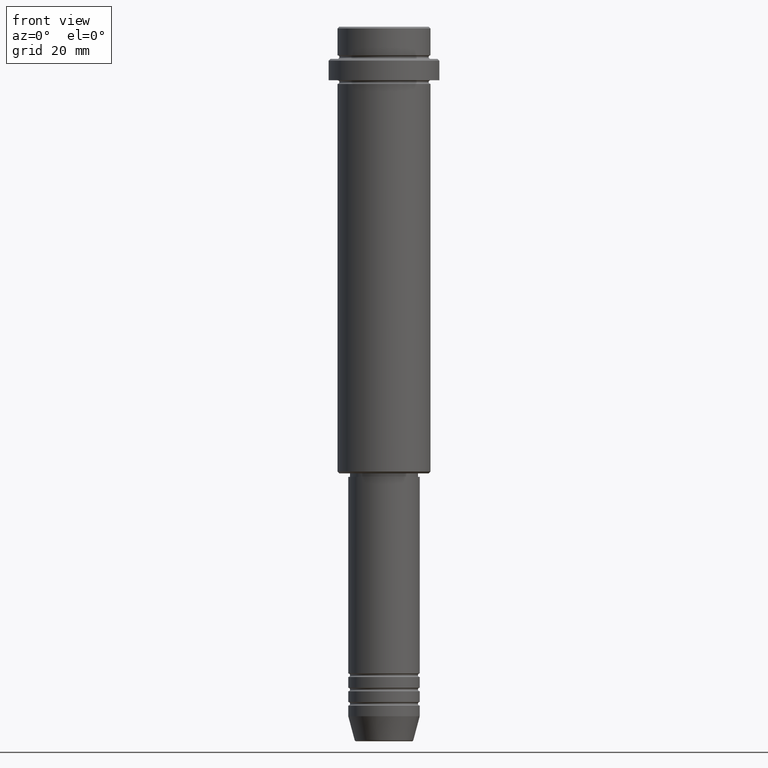
[diagram: clean part render]
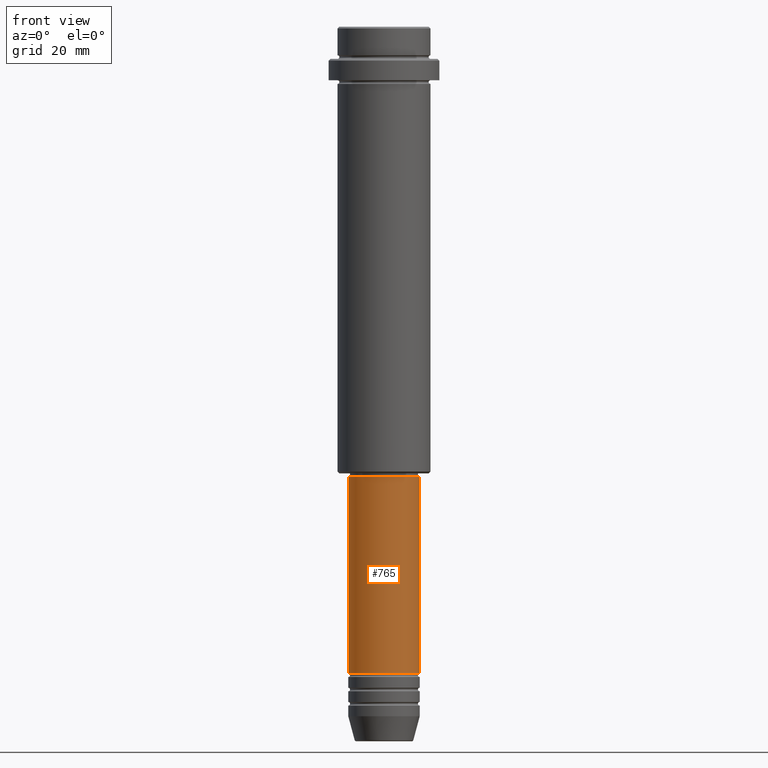
[diagram: same view with one face highlighted and labeled with its STEP entity id]
A machine part, front view. The second image highlights one B-rep face of the part: STEP entity #765.
In plain terms, the highlighted cylindrical surface (edge-blend (fillet) strip) has radius 10 mm, axis along (-0, -0, 1).
Its self-contained STEP definition (entity closure, byte-faithful):
#57 = ORIENTED_EDGE ( 'NONE', *, *, #1148, .T. ) ;
#106 = VECTOR ( 'NONE', #851, 1000.000000000000000 ) ;
#115 = EDGE_LOOP ( 'NONE', ( #1225, #1216, #57, #1076 ) ) ;
#136 = AXIS2_PLACEMENT_3D ( 'NONE', #1374, #636, #1154 ) ;
#226 = CARTESIAN_POINT ( 'NONE',  ( -10.00000000000000000, 1.224646799147353256E-15, -180.9999999999999147 ) ) ;
#230 = LINE ( 'NONE', #670, #909 ) ;
#232 = CARTESIAN_POINT ( 'NONE',  ( 10.00000000000000178, 0.000000000000000000, -126.0000000000000284 ) ) ;
#257 = DIRECTION ( 'NONE',  ( 1.000000000000000000, 0.000000000000000000, 0.000000000000000000 ) ) ;
#392 = CARTESIAN_POINT ( 'NONE',  ( -10.00000000000000178, 1.224646799147353454E-15, 0.000000000000000000 ) ) ;
#413 = EDGE_CURVE ( 'NONE', #696, #1296, #1183, .T. ) ;
#566 = AXIS2_PLACEMENT_3D ( 'NONE', #1244, #698, #1364 ) ;
#628 = VERTEX_POINT ( 'NONE', #232 ) ;
#636 = DIRECTION ( 'NONE',  ( -0.000000000000000000, -0.000000000000000000, 1.000000000000000000 ) ) ;
#646 = VERTEX_POINT ( 'NONE', #1000 ) ;
#670 = CARTESIAN_POINT ( 'NONE',  ( 10.00000000000000178, 0.000000000000000000, 0.000000000000000000 ) ) ;
#696 = VERTEX_POINT ( 'NONE', #226 ) ;
#698 = DIRECTION ( 'NONE',  ( -0.000000000000000000, -0.000000000000000000, 1.000000000000000000 ) ) ;
#735 = LINE ( 'NONE', #392, #106 ) ;
#746 = CIRCLE ( 'NONE', #136, 10.00000000000000178 ) ;
#765 = ADVANCED_FACE ( 'NONE', ( #1239 ), #1232, .T. ) ;
#816 = AXIS2_PLACEMENT_3D ( 'NONE', #1151, #1243, #257 ) ;
#851 = DIRECTION ( 'NONE',  ( -0.000000000000000000, -0.000000000000000000, 1.000000000000000000 ) ) ;
#870 = EDGE_CURVE ( 'NONE', #696, #646, #735, .T. ) ;
#909 = VECTOR ( 'NONE', #1326, 1000.000000000000000 ) ;
#1000 = CARTESIAN_POINT ( 'NONE',  ( -10.00000000000000178, 1.224646799147353454E-15, -126.0000000000000284 ) ) ;
#1076 = ORIENTED_EDGE ( 'NONE', *, *, #1379, .F. ) ;
#1114 = CARTESIAN_POINT ( 'NONE',  ( 10.00000000000000000, 0.000000000000000000, -180.9999999999999147 ) ) ;
#1148 = EDGE_CURVE ( 'NONE', #1296, #628, #230, .T. ) ;
#1151 = CARTESIAN_POINT ( 'NONE',  ( 0.000000000000000000, 0.000000000000000000, 0.000000000000000000 ) ) ;
#1154 = DIRECTION ( 'NONE',  ( 1.000000000000000000, 0.000000000000000000, 0.000000000000000000 ) ) ;
#1183 = CIRCLE ( 'NONE', #566, 10.00000000000000000 ) ;
#1216 = ORIENTED_EDGE ( 'NONE', *, *, #413, .T. ) ;
#1225 = ORIENTED_EDGE ( 'NONE', *, *, #870, .F. ) ;
#1232 = CYLINDRICAL_SURFACE ( 'NONE', #816, 10.00000000000000178 ) ;
#1239 = FACE_OUTER_BOUND ( 'NONE', #115, .T. ) ;
#1243 = DIRECTION ( 'NONE',  ( -0.000000000000000000, -0.000000000000000000, 1.000000000000000000 ) ) ;
#1244 = CARTESIAN_POINT ( 'NONE',  ( 0.000000000000000000, 0.000000000000000000, -180.9999999999999147 ) ) ;
#1296 = VERTEX_POINT ( 'NONE', #1114 ) ;
#1326 = DIRECTION ( 'NONE',  ( -0.000000000000000000, -0.000000000000000000, 1.000000000000000000 ) ) ;
#1364 = DIRECTION ( 'NONE',  ( 1.000000000000000000, 0.000000000000000000, 0.000000000000000000 ) ) ;
#1374 = CARTESIAN_POINT ( 'NONE',  ( 0.000000000000000000, 0.000000000000000000, -126.0000000000000284 ) ) ;
#1379 = EDGE_CURVE ( 'NONE', #646, #628, #746, .T. ) ;